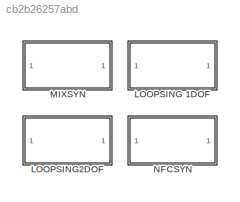
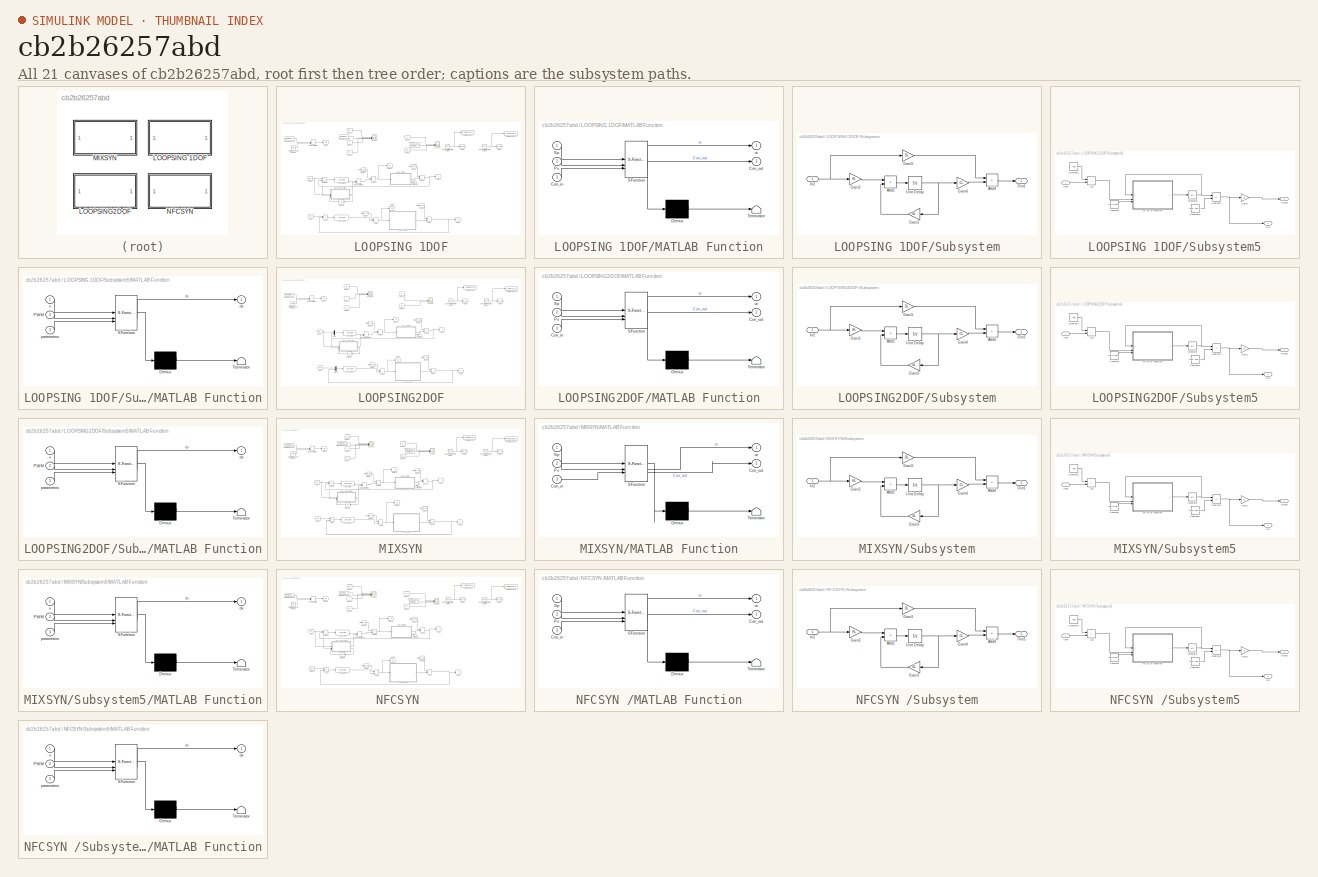
[diagram: thumbnail index - all 21 canvases of the model, root first then tree order]
MODEL slx_cb2b26257abd
KIND model
CONFIG AbsTol = auto
CONFIG EnableMultiTasking = off
CONFIG FixedStep = auto
CONFIG MaxStep = auto
CONFIG MinStep = auto
CONFIG RelTol = 1e-3
CONFIG SampleTimeConstraint = Unconstrained
CONFIG SolverName = ode23t
CONFIG StartTime = 0.0
CONFIG StopTime = 110
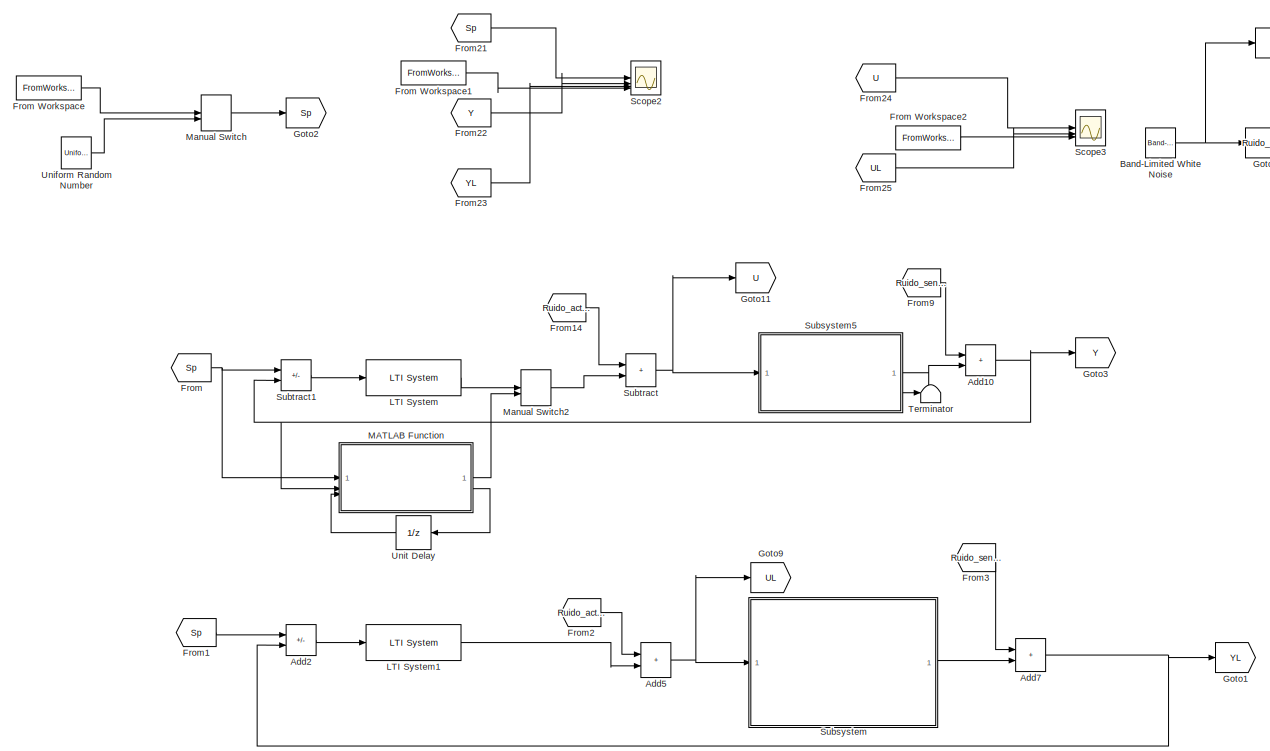
[diagram: LOOPSING 1DOF - part 1/2, most of the canvas]
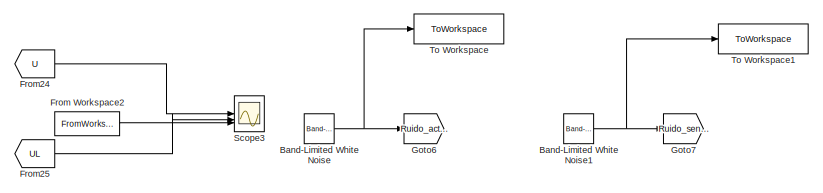
[diagram: LOOPSING 1DOF - part 2/2, top right region]
BLOCK [SubSystem] LOOPSING 1DOF
  Commented = on
BLOCK [Sum] LOOPSING 1DOF/Add10
  IconShape = rectangular
BLOCK [Sum] LOOPSING 1DOF/Add2
  IconShape = rectangular
  Inputs = +-
BLOCK [Sum] LOOPSING 1DOF/Add5
  IconShape = rectangular
BLOCK [Sum] LOOPSING 1DOF/Add7
  IconShape = rectangular
BLOCK [Reference] LOOPSING 1DOF/Band-Limited White Noise  REF=simulink/Sources/Band-Limited
White Noise
  SourceBlock = simulink/Sources/Band-Limited\nWhite Noise
  SourceType = Band-Limited White Noise.
BLOCK [Reference] LOOPSING 1DOF/Band-Limited White Noise1  REF=simulink/Sources/Band-Limited
White Noise
  SourceBlock = simulink/Sources/Band-Limited\nWhite Noise
  SourceType = Band-Limited White Noise.
BLOCK [From] LOOPSING 1DOF/From
  GotoTag = Sp
BLOCK [FromWorkspace] LOOPSING 1DOF/From Workspace
  VariableName = [t' SP]
BLOCK [FromWorkspace] LOOPSING 1DOF/From Workspace1
  VariableName = [t' theta]
BLOCK [FromWorkspace] LOOPSING 1DOF/From Workspace2
  VariableName = [t' pwm]
BLOCK [From] LOOPSING 1DOF/From1
  GotoTag = Sp
BLOCK [From] LOOPSING 1DOF/From14
  GotoTag = Ruido_actuador
BLOCK [From] LOOPSING 1DOF/From2
  GotoTag = Ruido_actuador
BLOCK [From] LOOPSING 1DOF/From21
  GotoTag = Sp
BLOCK [From] LOOPSING 1DOF/From22
  GotoTag = Y
BLOCK [From] LOOPSING 1DOF/From23
  GotoTag = YL
BLOCK [From] LOOPSING 1DOF/From24
  GotoTag = U
BLOCK [From] LOOPSING 1DOF/From25
  GotoTag = UL
BLOCK [From] LOOPSING 1DOF/From3
  GotoTag = Ruido_sensor
BLOCK [From] LOOPSING 1DOF/From9
  GotoTag = Ruido_sensor
BLOCK [Goto] LOOPSING 1DOF/Goto1
  GotoTag = YL
BLOCK [Goto] LOOPSING 1DOF/Goto11
  GotoTag = U
BLOCK [Goto] LOOPSING 1DOF/Goto2
  GotoTag = Sp
BLOCK [Goto] LOOPSING 1DOF/Goto3
  GotoTag = Y
BLOCK [Goto] LOOPSING 1DOF/Goto6
  GotoTag = Ruido_actuador
BLOCK [Goto] LOOPSING 1DOF/Goto7
  GotoTag = Ruido_sensor
BLOCK [Goto] LOOPSING 1DOF/Goto9
  GotoTag = UL
BLOCK [Reference] LOOPSING 1DOF/LTI System  REF=cstblocks/LTI System
  SourceBlock = cstblocks/LTI System
  SourceType = LTI Block
BLOCK [Reference] LOOPSING 1DOF/LTI System1  REF=cstblocks/LTI System
  SourceBlock = cstblocks/LTI System
  SourceType = LTI Block
BLOCK [SubSystem] LOOPSING 1DOF/MATLAB Function
  ErrorFcn = Stateflow.Translate.translate
  PermitHierarchicalResolution = ExplicitOnly
  SFBlockType = MATLAB Function
  TreatAsAtomicUnit = on
BLOCK [Demux] LOOPSING 1DOF/MATLAB Function/ Demux 
  Outputs = 1
BLOCK [S-Function] LOOPSING 1DOF/MATLAB Function/ SFunction 
  EnableBusSupport = on
  FunctionName = sf_sfun
  PortCounts = [3 3]
  SFcnIsStateOwnerBlock = off
  SFunctionDeploymentMode = off
  Tag = Stateflow S-Function 2
BLOCK [Terminator] LOOPSING 1DOF/MATLAB Function/ Terminator 
BLOCK [Inport] LOOPSING 1DOF/MATLAB Function/Con_in
  Port = 3
BLOCK [Outport] LOOPSING 1DOF/MATLAB Function/Con_out
  Port = 2
  VectorParamsAs1DForOutWhenUnconnected = off
BLOCK [Inport] LOOPSING 1DOF/MATLAB Function/Pv
  Port = 2
BLOCK [Inport] LOOPSING 1DOF/MATLAB Function/Sp
BLOCK [Outport] LOOPSING 1DOF/MATLAB Function/ut
  VectorParamsAs1DForOutWhenUnconnected = off
BLOCK [ManualSwitch] LOOPSING 1DOF/Manual Switch
BLOCK [ManualSwitch] LOOPSING 1DOF/Manual Switch2
  CurrentSetting = 0
BLOCK [Scope] LOOPSING 1DOF/Scope2
  Floating = off
  NumInputPorts = 4
  ScopeSpecificationString = Simulink.scopes.TimeScopeBlockCfg('CurrentConfiguration', extmgr.ConfigurationSet(extmgr.Configuration('Core','General UI',true,'FigureColor',[1 1 1]),extmgr.Configuration('Core','Source UI',true),extmgr.Configuration('Sources','WiredSimulink',true,'DataLoggingVariableName','ScopeData1'),extmgr.Configuration('Visuals','Time Domain',true,'SerializedDisplays',{struct('MinYLimReal','-1.73389','MaxYLi...<+2507ch>
BLOCK [Scope] LOOPSING 1DOF/Scope3
  Floating = off
  NumInputPorts = 3
  ScopeSpecificationString = Simulink.scopes.TimeScopeBlockCfg('CurrentConfiguration', extmgr.ConfigurationSet(extmgr.Configuration('Core','General UI',true,'FigureColor',[1 1 1]),extmgr.Configuration('Core','Source UI',true),extmgr.Configuration('Sources','WiredSimulink',true,'DataLoggingVariableName','ScopeData2'),extmgr.Configuration('Visuals','Time Domain',true,'SerializedDisplays',{struct('MinYLimReal','-122.1502','MaxYL...<+2506ch>
BLOCK [SubSystem] LOOPSING 1DOF/Subsystem
BLOCK [Sum] LOOPSING 1DOF/Subsystem/Add1
  IconShape = rectangular
BLOCK [Sum] LOOPSING 1DOF/Subsystem/Add4
  IconShape = rectangular
BLOCK [Gain] LOOPSING 1DOF/Subsystem/Gain2
  Gain = HL
  Multiplication = Matrix(K*u)
BLOCK [Gain] LOOPSING 1DOF/Subsystem/Gain3
  Gain = GL
  Multiplication = Matrix(K*u)
  NameLocation = top
BLOCK [Gain] LOOPSING 1DOF/Subsystem/Gain4
  Gain = CL
  Multiplication = Matrix(K*u)
BLOCK [Gain] LOOPSING 1DOF/Subsystem/Gain5
  Gain = DL
  Multiplication = Matrix(K*u)
BLOCK [Inport] LOOPSING 1DOF/Subsystem/In2
BLOCK [Outport] LOOPSING 1DOF/Subsystem/Out1
BLOCK [UnitDelay] LOOPSING 1DOF/Subsystem/Unit Delay
  HasFrameUpgradeWarning = on
  SampleTime = Tm
BLOCK [SubSystem] LOOPSING 1DOF/Subsystem5
BLOCK [Sum] LOOPSING 1DOF/Subsystem5/Add
  IconShape = rectangular
BLOCK [Constant] LOOPSING 1DOF/Subsystem5/Constant
  Value = [Ro,Lo,Kio, Kvo, Jmo, Jlo, Bmo, Blo, no, go, do, mo]
BLOCK [Constant] LOOPSING 1DOF/Subsystem5/Constant1
  Value = Vin0
BLOCK [Constant] LOOPSING 1DOF/Subsystem5/Constant2
  Value = [X10; X20;X30]
BLOCK [Outport] LOOPSING 1DOF/Subsystem5/Est
  Port = 2
BLOCK [Gain] LOOPSING 1DOF/Subsystem5/Gain1
  Gain = CL
  Multiplication = Matrix(K*u)
BLOCK [Inport] LOOPSING 1DOF/Subsystem5/Input
BLOCK [Integrator] LOOPSING 1DOF/Subsystem5/Integrator
  InitialCondition = [X10; X20;X30]
BLOCK [SubSystem] LOOPSING 1DOF/Subsystem5/MATLAB Function
  ErrorFcn = Stateflow.Translate.translate
  PermitHierarchicalResolution = ExplicitOnly
  SFBlockType = MATLAB Function
  TreatAsAtomicUnit = on
BLOCK [Demux] LOOPSING 1DOF/Subsystem5/MATLAB Function/ Demux 
  Outputs = 1
BLOCK [S-Function] LOOPSING 1DOF/Subsystem5/MATLAB Function/ SFunction 
  EnableBusSupport = on
  FunctionName = sf_sfun
  PortCounts = [3 2]
  SFcnIsStateOwnerBlock = off
  SFunctionDeploymentMode = off
  Tag = Stateflow S-Function 3
BLOCK [Terminator] LOOPSING 1DOF/Subsystem5/MATLAB Function/ Terminator 
BLOCK [Inport] LOOPSING 1DOF/Subsystem5/MATLAB Function/PWM
  Port = 2
BLOCK [Outport] LOOPSING 1DOF/Subsystem5/MATLAB Function/dx
BLOCK [Inport] LOOPSING 1DOF/Subsystem5/MATLAB Function/parametros
  Port = 3
BLOCK [Inport] LOOPSING 1DOF/Subsystem5/MATLAB Function/x
BLOCK [Outport] LOOPSING 1DOF/Subsystem5/Output
BLOCK [Sum] LOOPSING 1DOF/Subsystem5/Subtract1
  IconShape = rectangular
  Inputs = +-
BLOCK [Sum] LOOPSING 1DOF/Subtract
  IconShape = rectangular
BLOCK [Sum] LOOPSING 1DOF/Subtract1
  IconShape = rectangular
  Inputs = +-
BLOCK [Terminator] LOOPSING 1DOF/Terminator
BLOCK [ToWorkspace] LOOPSING 1DOF/To Workspace
  FixptAsFi = on
  MaxDataPoints = inf
  SampleTime = -1
  VariableName = Ruido_actuador2
BLOCK [ToWorkspace] LOOPSING 1DOF/To Workspace1
  FixptAsFi = on
  MaxDataPoints = inf
  SampleTime = -1
  VariableName = Ruido_sensor2
BLOCK [UniformRandomNumber] LOOPSING 1DOF/Uniform Random Number
  Maximum = 70*(pi/180)
  Minimum = -70*(pi/180)
  SampleTime = 10
BLOCK [UnitDelay] LOOPSING 1DOF/Unit Delay
  HasFrameUpgradeWarning = on
  InitialCondition = zeros(4,1)
  NameLocation = top
  SampleTime = Tm
BLOCK [SubSystem] LOOPSING2DOF
  Commented = on
BLOCK [Sum] LOOPSING2DOF/Add10
  IconShape = rectangular
BLOCK [Sum] LOOPSING2DOF/Add5
  IconShape = rectangular
BLOCK [Sum] LOOPSING2DOF/Add7
  IconShape = rectangular
BLOCK [Reference] LOOPSING2DOF/Band-Limited White Noise  REF=simulink/Sources/Band-Limited
White Noise
  SourceBlock = simulink/Sources/Band-Limited\nWhite Noise
  SourceType = Band-Limited White Noise.
BLOCK [Reference] LOOPSING2DOF/Band-Limited White Noise1  REF=simulink/Sources/Band-Limited
White Noise
  SourceBlock = simulink/Sources/Band-Limited\nWhite Noise
  SourceType = Band-Limited White Noise.
BLOCK [From] LOOPSING2DOF/From
  GotoTag = Sp
BLOCK [FromWorkspace] LOOPSING2DOF/From Workspace
  Commented = on
  VariableName = [t' SP]
BLOCK [From] LOOPSING2DOF/From1
  GotoTag = Sp
BLOCK [From] LOOPSING2DOF/From14
  GotoTag = Ruido_actuador
BLOCK [From] LOOPSING2DOF/From2
  GotoTag = Ruido_actuador
BLOCK [From] LOOPSING2DOF/From21
  GotoTag = Sp
BLOCK [From] LOOPSING2DOF/From22
  GotoTag = Y
BLOCK [From] LOOPSING2DOF/From23
  GotoTag = YL
BLOCK [From] LOOPSING2DOF/From24
  GotoTag = U
BLOCK [From] LOOPSING2DOF/From25
  GotoTag = UL
BLOCK [From] LOOPSING2DOF/From3
  GotoTag = Ruido_sensor
BLOCK [From] LOOPSING2DOF/From9
  GotoTag = Ruido_sensor
BLOCK [Goto] LOOPSING2DOF/Goto1
  GotoTag = YL
BLOCK [Goto] LOOPSING2DOF/Goto11
  GotoTag = U
BLOCK [Goto] LOOPSING2DOF/Goto2
  GotoTag = Sp
BLOCK [Goto] LOOPSING2DOF/Goto3
  GotoTag = Y
BLOCK [Goto] LOOPSING2DOF/Goto6
  GotoTag = Ruido_actuador
BLOCK [Goto] LOOPSING2DOF/Goto7
  GotoTag = Ruido_sensor
BLOCK [Goto] LOOPSING2DOF/Goto9
  GotoTag = UL
BLOCK [Reference] LOOPSING2DOF/LTI System  REF=cstblocks/LTI System
  SourceBlock = cstblocks/LTI System
  SourceType = LTI Block
BLOCK [Reference] LOOPSING2DOF/LTI System1  REF=cstblocks/LTI System
  SourceBlock = cstblocks/LTI System
  SourceType = LTI Block
BLOCK [SubSystem] LOOPSING2DOF/MATLAB Function
  ErrorFcn = Stateflow.Translate.translate
  PermitHierarchicalResolution = ExplicitOnly
  SFBlockType = MATLAB Function
  TreatAsAtomicUnit = on
BLOCK [Demux] LOOPSING2DOF/MATLAB Function/ Demux 
  Outputs = 1
BLOCK [S-Function] LOOPSING2DOF/MATLAB Function/ SFunction 
  EnableBusSupport = on
  FunctionName = sf_sfun
  PortCounts = [3 3]
  SFcnIsStateOwnerBlock = off
  SFunctionDeploymentMode = off
  Tag = Stateflow S-Function 4
BLOCK [Terminator] LOOPSING2DOF/MATLAB Function/ Terminator 
BLOCK [Inport] LOOPSING2DOF/MATLAB Function/Con_in
  Port = 3
BLOCK [Outport] LOOPSING2DOF/MATLAB Function/Con_out
  Port = 2
  VectorParamsAs1DForOutWhenUnconnected = off
BLOCK [Inport] LOOPSING2DOF/MATLAB Function/Pv
  Port = 2
BLOCK [Inport] LOOPSING2DOF/MATLAB Function/Sp
BLOCK [Outport] LOOPSING2DOF/MATLAB Function/ut
  VectorParamsAs1DForOutWhenUnconnected = off
BLOCK [ManualSwitch] LOOPSING2DOF/Manual Switch
  CurrentSetting = 0
BLOCK [ManualSwitch] LOOPSING2DOF/Manual Switch2
  CurrentSetting = 0
BLOCK [Mux] LOOPSING2DOF/Mux
  DisplayOption = bar
  Inputs = 2
BLOCK [Mux] LOOPSING2DOF/Mux1
  DisplayOption = bar
  Inputs = 2
BLOCK [Scope] LOOPSING2DOF/Scope2
  Floating = off
  NumInputPorts = 3
  ScopeSpecificationString = Simulink.scopes.TimeScopeBlockCfg('CurrentConfiguration', extmgr.ConfigurationSet(extmgr.Configuration('Core','General UI',true,'FigureColor',[1 1 1]),extmgr.Configuration('Core','Source UI',true),extmgr.Configuration('Sources','WiredSimulink',true,'DataLoggingVariableName','ScopeData3'),extmgr.Configuration('Visuals','Time Domain',true,'SerializedDisplays',{struct('MinYLimReal','-1.46938','MaxYLi...<+2491ch>
BLOCK [Scope] LOOPSING2DOF/Scope3
  Floating = off
  NumInputPorts = 2
  ScopeSpecificationString = Simulink.scopes.TimeScopeBlockCfg('CurrentConfiguration', extmgr.ConfigurationSet(extmgr.Configuration('Core','General UI',true,'FigureColor',[1 1 1]),extmgr.Configuration('Core','Source UI',true),extmgr.Configuration('Sources','WiredSimulink',true,'DataLoggingVariableName','ScopeData4'),extmgr.Configuration('Visuals','Time Domain',true,'SerializedDisplays',{struct('MinYLimReal','-59.14386','MaxYL...<+2488ch>
BLOCK [SubSystem] LOOPSING2DOF/Subsystem
BLOCK [Sum] LOOPSING2DOF/Subsystem/Add1
  IconShape = rectangular
BLOCK [Sum] LOOPSING2DOF/Subsystem/Add4
  IconShape = rectangular
BLOCK [Gain] LOOPSING2DOF/Subsystem/Gain2
  Gain = HL
  Multiplication = Matrix(K*u)
BLOCK [Gain] LOOPSING2DOF/Subsystem/Gain3
  Gain = GL
  Multiplication = Matrix(K*u)
  NameLocation = top
BLOCK [Gain] LOOPSING2DOF/Subsystem/Gain4
  Gain = CL
  Multiplication = Matrix(K*u)
BLOCK [Gain] LOOPSING2DOF/Subsystem/Gain5
  Gain = DL
  Multiplication = Matrix(K*u)
BLOCK [Inport] LOOPSING2DOF/Subsystem/In2
BLOCK [Outport] LOOPSING2DOF/Subsystem/Out1
BLOCK [UnitDelay] LOOPSING2DOF/Subsystem/Unit Delay
  HasFrameUpgradeWarning = on
  SampleTime = Tm
BLOCK [SubSystem] LOOPSING2DOF/Subsystem5
BLOCK [Sum] LOOPSING2DOF/Subsystem5/Add
  IconShape = rectangular
BLOCK [Constant] LOOPSING2DOF/Subsystem5/Constant
  Value = [Ro,Lo,Kio, Kvo, Jmo, Jlo, Bmo, Blo, no, go, do, mo]
BLOCK [Constant] LOOPSING2DOF/Subsystem5/Constant1
  Value = Vin0
BLOCK [Constant] LOOPSING2DOF/Subsystem5/Constant2
  Value = [X10; X20;X30]
BLOCK [Outport] LOOPSING2DOF/Subsystem5/Est
  Port = 2
BLOCK [Gain] LOOPSING2DOF/Subsystem5/Gain1
  Gain = CL
  Multiplication = Matrix(K*u)
BLOCK [Inport] LOOPSING2DOF/Subsystem5/Input
BLOCK [Integrator] LOOPSING2DOF/Subsystem5/Integrator
  InitialCondition = [X10; X20;X30]
BLOCK [SubSystem] LOOPSING2DOF/Subsystem5/MATLAB Function
  ErrorFcn = Stateflow.Translate.translate
  PermitHierarchicalResolution = ExplicitOnly
  SFBlockType = MATLAB Function
  TreatAsAtomicUnit = on
BLOCK [Demux] LOOPSING2DOF/Subsystem5/MATLAB Function/ Demux 
  Outputs = 1
BLOCK [S-Function] LOOPSING2DOF/Subsystem5/MATLAB Function/ SFunction 
  EnableBusSupport = on
  FunctionName = sf_sfun
  PortCounts = [3 2]
  SFcnIsStateOwnerBlock = off
  SFunctionDeploymentMode = off
  Tag = Stateflow S-Function 5
BLOCK [Terminator] LOOPSING2DOF/Subsystem5/MATLAB Function/ Terminator 
BLOCK [Inport] LOOPSING2DOF/Subsystem5/MATLAB Function/PWM
  Port = 2
BLOCK [Outport] LOOPSING2DOF/Subsystem5/MATLAB Function/dx
BLOCK [Inport] LOOPSING2DOF/Subsystem5/MATLAB Function/parametros
  Port = 3
BLOCK [Inport] LOOPSING2DOF/Subsystem5/MATLAB Function/x
BLOCK [Outport] LOOPSING2DOF/Subsystem5/Output
BLOCK [Sum] LOOPSING2DOF/Subsystem5/Subtract1
  IconShape = rectangular
  Inputs = +-
BLOCK [Sum] LOOPSING2DOF/Subtract
  IconShape = rectangular
BLOCK [Terminator] LOOPSING2DOF/Terminator
BLOCK [ToWorkspace] LOOPSING2DOF/To Workspace
  FixptAsFi = on
  MaxDataPoints = inf
  SampleTime = -1
  VariableName = Ruido_actuador2
BLOCK [ToWorkspace] LOOPSING2DOF/To Workspace1
  FixptAsFi = on
  MaxDataPoints = inf
  SampleTime = -1
  VariableName = Ruido_sensor2
BLOCK [UniformRandomNumber] LOOPSING2DOF/Uniform Random Number
  Maximum = 70*(pi/180)
  Minimum = -70*(pi/180)
  SampleTime = 10
BLOCK [UnitDelay] LOOPSING2DOF/Unit Delay
  HasFrameUpgradeWarning = on
  InitialCondition = zeros(5,1)
  NameLocation = top
  SampleTime = Tm
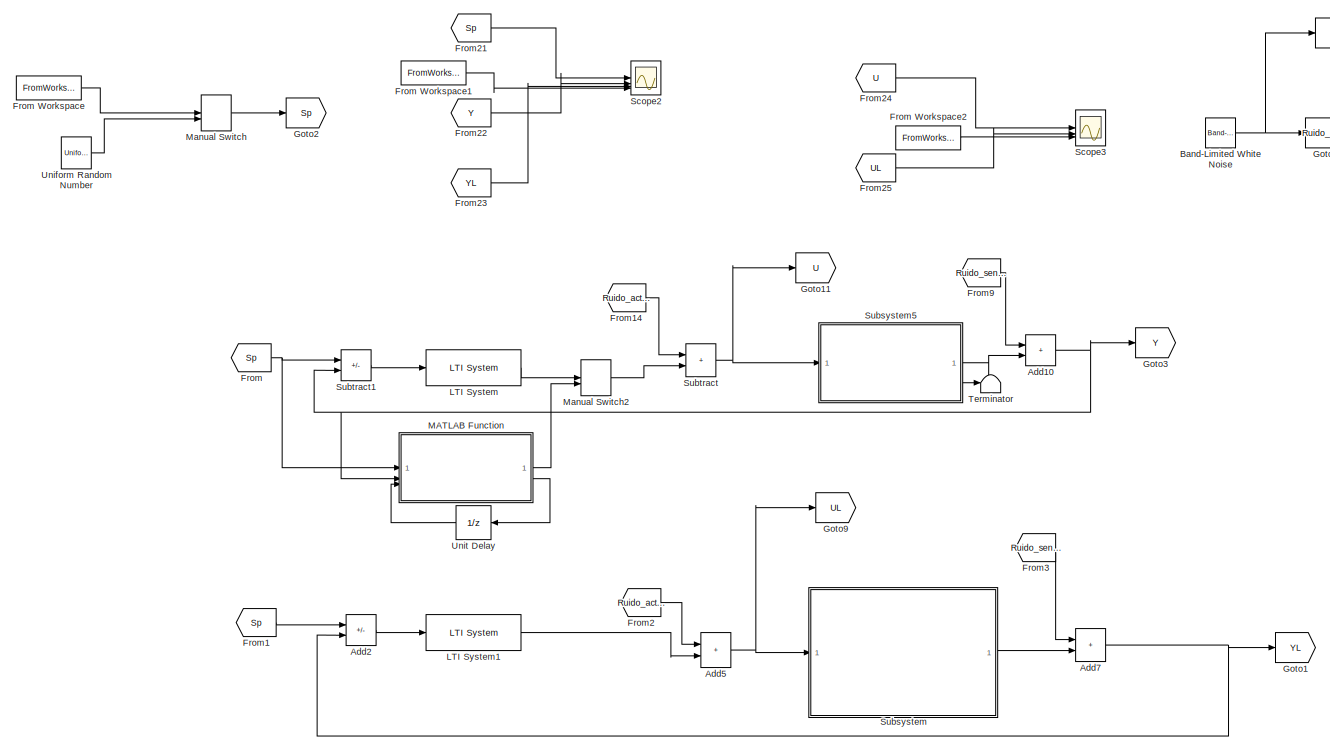
[diagram: MIXSYN - part 1/2, most of the canvas]
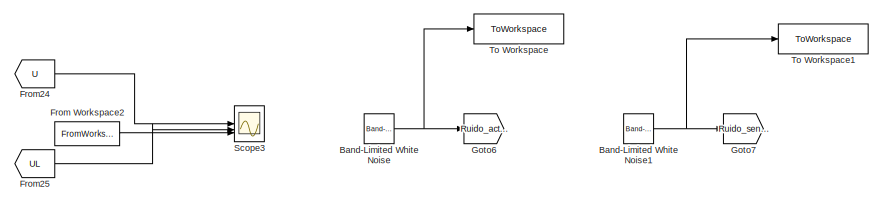
[diagram: MIXSYN - part 2/2, top right region]
BLOCK [SubSystem] MIXSYN
BLOCK [Sum] MIXSYN/Add10
  IconShape = rectangular
BLOCK [Sum] MIXSYN/Add2
  IconShape = rectangular
  Inputs = +-
BLOCK [Sum] MIXSYN/Add5
  IconShape = rectangular
BLOCK [Sum] MIXSYN/Add7
  IconShape = rectangular
BLOCK [Reference] MIXSYN/Band-Limited White Noise  REF=simulink/Sources/Band-Limited
White Noise
  SourceBlock = simulink/Sources/Band-Limited\nWhite Noise
  SourceType = Band-Limited White Noise.
BLOCK [Reference] MIXSYN/Band-Limited White Noise1  REF=simulink/Sources/Band-Limited
White Noise
  SourceBlock = simulink/Sources/Band-Limited\nWhite Noise
  SourceType = Band-Limited White Noise.
BLOCK [From] MIXSYN/From
  GotoTag = Sp
BLOCK [FromWorkspace] MIXSYN/From Workspace
  VariableName = [t' SP]
BLOCK [FromWorkspace] MIXSYN/From Workspace1
  VariableName = [t' theta]
BLOCK [FromWorkspace] MIXSYN/From Workspace2
  VariableName = [t' pwm]
BLOCK [From] MIXSYN/From1
  GotoTag = Sp
BLOCK [From] MIXSYN/From14
  GotoTag = Ruido_actuador
BLOCK [From] MIXSYN/From2
  GotoTag = Ruido_actuador
BLOCK [From] MIXSYN/From21
  GotoTag = Sp
BLOCK [From] MIXSYN/From22
  GotoTag = Y
BLOCK [From] MIXSYN/From23
  GotoTag = YL
BLOCK [From] MIXSYN/From24
  GotoTag = U
BLOCK [From] MIXSYN/From25
  GotoTag = UL
BLOCK [From] MIXSYN/From3
  GotoTag = Ruido_sensor
BLOCK [From] MIXSYN/From9
  GotoTag = Ruido_sensor
BLOCK [Goto] MIXSYN/Goto1
  GotoTag = YL
BLOCK [Goto] MIXSYN/Goto11
  GotoTag = U
BLOCK [Goto] MIXSYN/Goto2
  GotoTag = Sp
BLOCK [Goto] MIXSYN/Goto3
  GotoTag = Y
BLOCK [Goto] MIXSYN/Goto6
  GotoTag = Ruido_actuador
BLOCK [Goto] MIXSYN/Goto7
  GotoTag = Ruido_sensor
BLOCK [Goto] MIXSYN/Goto9
  GotoTag = UL
BLOCK [Reference] MIXSYN/LTI System  REF=cstblocks/LTI System
  SourceBlock = cstblocks/LTI System
  SourceType = LTI Block
BLOCK [Reference] MIXSYN/LTI System1  REF=cstblocks/LTI System
  SourceBlock = cstblocks/LTI System
  SourceType = LTI Block
BLOCK [SubSystem] MIXSYN/MATLAB Function
  ErrorFcn = Stateflow.Translate.translate
  PermitHierarchicalResolution = ExplicitOnly
  SFBlockType = MATLAB Function
  TreatAsAtomicUnit = on
BLOCK [Demux] MIXSYN/MATLAB Function/ Demux 
  Outputs = 1
BLOCK [S-Function] MIXSYN/MATLAB Function/ SFunction 
  EnableBusSupport = on
  FunctionName = sf_sfun
  PortCounts = [3 3]
  SFcnIsStateOwnerBlock = off
  SFunctionDeploymentMode = off
  Tag = Stateflow S-Function 1
BLOCK [Terminator] MIXSYN/MATLAB Function/ Terminator 
BLOCK [Inport] MIXSYN/MATLAB Function/Con_in
  Port = 3
BLOCK [Outport] MIXSYN/MATLAB Function/Con_out
  Port = 2
  VectorParamsAs1DForOutWhenUnconnected = off
BLOCK [Inport] MIXSYN/MATLAB Function/Pv
  Port = 2
BLOCK [Inport] MIXSYN/MATLAB Function/Sp
BLOCK [Outport] MIXSYN/MATLAB Function/ut
  VectorParamsAs1DForOutWhenUnconnected = off
BLOCK [ManualSwitch] MIXSYN/Manual Switch
BLOCK [ManualSwitch] MIXSYN/Manual Switch2
  CurrentSetting = 0
BLOCK [Scope] MIXSYN/Scope2
  Floating = off
  NumInputPorts = 4
  ScopeSpecificationString = Simulink.scopes.TimeScopeBlockCfg('CurrentConfiguration', extmgr.ConfigurationSet(extmgr.Configuration('Core','General UI',true,'FigureColor',[1 1 1]),extmgr.Configuration('Core','Source UI',true),extmgr.Configuration('Sources','WiredSimulink',true,'DataLoggingVariableName','ScopeData5'),extmgr.Configuration('Visuals','Time Domain',true,'SerializedDisplays',{struct('MinYLimReal','-1.46033','MaxYLi...<+2507ch>
BLOCK [Scope] MIXSYN/Scope3
  Floating = off
  NumInputPorts = 3
  ScopeSpecificationString = Simulink.scopes.TimeScopeBlockCfg('CurrentConfiguration', extmgr.ConfigurationSet(extmgr.Configuration('Core','General UI',true,'FigureColor',[1 1 1]),extmgr.Configuration('Core','Source UI',true),extmgr.Configuration('Sources','WiredSimulink',true,'DataLoggingVariableName','ScopeData6'),extmgr.Configuration('Visuals','Time Domain',true,'SerializedDisplays',{struct('MinYLimReal','-83.34375','MaxYL...<+2504ch>
BLOCK [SubSystem] MIXSYN/Subsystem
BLOCK [Sum] MIXSYN/Subsystem/Add1
  IconShape = rectangular
BLOCK [Sum] MIXSYN/Subsystem/Add4
  IconShape = rectangular
BLOCK [Gain] MIXSYN/Subsystem/Gain2
  Gain = HL
  Multiplication = Matrix(K*u)
BLOCK [Gain] MIXSYN/Subsystem/Gain3
  Gain = GL
  Multiplication = Matrix(K*u)
  NameLocation = top
BLOCK [Gain] MIXSYN/Subsystem/Gain4
  Gain = CL
  Multiplication = Matrix(K*u)
BLOCK [Gain] MIXSYN/Subsystem/Gain5
  Gain = DL
  Multiplication = Matrix(K*u)
BLOCK [Inport] MIXSYN/Subsystem/In2
BLOCK [Outport] MIXSYN/Subsystem/Out1
BLOCK [UnitDelay] MIXSYN/Subsystem/Unit Delay
  HasFrameUpgradeWarning = on
  SampleTime = Tm
BLOCK [SubSystem] MIXSYN/Subsystem5
BLOCK [Sum] MIXSYN/Subsystem5/Add
  IconShape = rectangular
BLOCK [Constant] MIXSYN/Subsystem5/Constant
  Value = [Ro,Lo,Kio, Kvo, Jmo, Jlo, Bmo, Blo, no, go, do, mo]
BLOCK [Constant] MIXSYN/Subsystem5/Constant1
  Value = Vin0
BLOCK [Constant] MIXSYN/Subsystem5/Constant2
  Value = [X10; X20;X30]
BLOCK [Outport] MIXSYN/Subsystem5/Est
  Port = 2
BLOCK [Gain] MIXSYN/Subsystem5/Gain1
  Gain = CL
  Multiplication = Matrix(K*u)
BLOCK [Inport] MIXSYN/Subsystem5/Input
BLOCK [Integrator] MIXSYN/Subsystem5/Integrator
  InitialCondition = [X10; X20;X30]
BLOCK [SubSystem] MIXSYN/Subsystem5/MATLAB Function
  ErrorFcn = Stateflow.Translate.translate
  PermitHierarchicalResolution = ExplicitOnly
  SFBlockType = MATLAB Function
  TreatAsAtomicUnit = on
BLOCK [Demux] MIXSYN/Subsystem5/MATLAB Function/ Demux 
  Outputs = 1
BLOCK [S-Function] MIXSYN/Subsystem5/MATLAB Function/ SFunction 
  EnableBusSupport = on
  FunctionName = sf_sfun
  PortCounts = [3 2]
  SFcnIsStateOwnerBlock = off
  SFunctionDeploymentMode = off
  Tag = Stateflow S-Function 10
BLOCK [Terminator] MIXSYN/Subsystem5/MATLAB Function/ Terminator 
BLOCK [Inport] MIXSYN/Subsystem5/MATLAB Function/PWM
  Port = 2
BLOCK [Outport] MIXSYN/Subsystem5/MATLAB Function/dx
BLOCK [Inport] MIXSYN/Subsystem5/MATLAB Function/parametros
  Port = 3
BLOCK [Inport] MIXSYN/Subsystem5/MATLAB Function/x
BLOCK [Outport] MIXSYN/Subsystem5/Output
BLOCK [Sum] MIXSYN/Subsystem5/Subtract1
  IconShape = rectangular
  Inputs = +-
BLOCK [Sum] MIXSYN/Subtract
  IconShape = rectangular
BLOCK [Sum] MIXSYN/Subtract1
  IconShape = rectangular
  Inputs = +-
BLOCK [Terminator] MIXSYN/Terminator
BLOCK [ToWorkspace] MIXSYN/To Workspace
  FixptAsFi = on
  MaxDataPoints = inf
  SampleTime = -1
  VariableName = Ruido_actuador2
BLOCK [ToWorkspace] MIXSYN/To Workspace1
  FixptAsFi = on
  MaxDataPoints = inf
  SampleTime = -1
  VariableName = Ruido_sensor2
BLOCK [UniformRandomNumber] MIXSYN/Uniform Random Number
  Maximum = 70*(pi/180)
  Minimum = -70*(pi/180)
  SampleTime = 10
BLOCK [UnitDelay] MIXSYN/Unit Delay
  HasFrameUpgradeWarning = on
  InitialCondition = zeros(5,1)
  NameLocation = top
  SampleTime = Tm
BLOCK [SubSystem] NFCSYN 
  Commented = on
BLOCK [Sum] NFCSYN /Add10
  IconShape = rectangular
BLOCK [Sum] NFCSYN /Add2
  IconShape = rectangular
  Inputs = +-
BLOCK [Sum] NFCSYN /Add5
  IconShape = rectangular
BLOCK [Sum] NFCSYN /Add7
  IconShape = rectangular
BLOCK [Reference] NFCSYN /Band-Limited White Noise  REF=simulink/Sources/Band-Limited
White Noise
  SourceBlock = simulink/Sources/Band-Limited\nWhite Noise
  SourceType = Band-Limited White Noise.
BLOCK [Reference] NFCSYN /Band-Limited White Noise1  REF=simulink/Sources/Band-Limited
White Noise
  SourceBlock = simulink/Sources/Band-Limited\nWhite Noise
  SourceType = Band-Limited White Noise.
BLOCK [From] NFCSYN /From
  GotoTag = Sp
BLOCK [FromWorkspace] NFCSYN /From Workspace
  VariableName = [t' SP]
BLOCK [FromWorkspace] NFCSYN /From Workspace1
  VariableName = [t' theta]
BLOCK [FromWorkspace] NFCSYN /From Workspace2
  VariableName = [t' pwm]
BLOCK [From] NFCSYN /From1
  GotoTag = Sp
BLOCK [From] NFCSYN /From14
  GotoTag = Ruido_actuador
BLOCK [From] NFCSYN /From2
  GotoTag = Ruido_actuador
BLOCK [From] NFCSYN /From21
  GotoTag = Sp
BLOCK [From] NFCSYN /From22
  GotoTag = Y
BLOCK [From] NFCSYN /From23
  GotoTag = YL
BLOCK [From] NFCSYN /From24
  GotoTag = U
BLOCK [From] NFCSYN /From25
  GotoTag = UL
BLOCK [From] NFCSYN /From3
  GotoTag = Ruido_sensor
BLOCK [From] NFCSYN /From9
  GotoTag = Ruido_sensor
BLOCK [Goto] NFCSYN /Goto1
  GotoTag = YL
BLOCK [Goto] NFCSYN /Goto11
  GotoTag = U
BLOCK [Goto] NFCSYN /Goto2
  GotoTag = Sp
BLOCK [Goto] NFCSYN /Goto3
  GotoTag = Y
BLOCK [Goto] NFCSYN /Goto6
  GotoTag = Ruido_actuador
BLOCK [Goto] NFCSYN /Goto7
  GotoTag = Ruido_sensor
BLOCK [Goto] NFCSYN /Goto9
  GotoTag = UL
BLOCK [Reference] NFCSYN /LTI System  REF=cstblocks/LTI System
  SourceBlock = cstblocks/LTI System
  SourceType = LTI Block
BLOCK [Reference] NFCSYN /LTI System1  REF=cstblocks/LTI System
  SourceBlock = cstblocks/LTI System
  SourceType = LTI Block
BLOCK [SubSystem] NFCSYN /MATLAB Function
  ErrorFcn = Stateflow.Translate.translate
  PermitHierarchicalResolution = ExplicitOnly
  SFBlockType = MATLAB Function
  TreatAsAtomicUnit = on
BLOCK [Demux] NFCSYN /MATLAB Function/ Demux 
  Outputs = 1
BLOCK [S-Function] NFCSYN /MATLAB Function/ SFunction 
  EnableBusSupport = on
  FunctionName = sf_sfun
  PortCounts = [3 3]
  SFcnIsStateOwnerBlock = off
  SFunctionDeploymentMode = off
  Tag = Stateflow S-Function 6
BLOCK [Terminator] NFCSYN /MATLAB Function/ Terminator 
BLOCK [Inport] NFCSYN /MATLAB Function/Con_in
  Port = 3
BLOCK [Outport] NFCSYN /MATLAB Function/Con_out
  Port = 2
  VectorParamsAs1DForOutWhenUnconnected = off
BLOCK [Inport] NFCSYN /MATLAB Function/Pv
  Port = 2
BLOCK [Inport] NFCSYN /MATLAB Function/Sp
BLOCK [Outport] NFCSYN /MATLAB Function/ut
  VectorParamsAs1DForOutWhenUnconnected = off
BLOCK [ManualSwitch] NFCSYN /Manual Switch
BLOCK [ManualSwitch] NFCSYN /Manual Switch2
  CurrentSetting = 0
BLOCK [Scope] NFCSYN /Scope2
  Floating = off
  NumInputPorts = 4
  ScopeSpecificationString = Simulink.scopes.TimeScopeBlockCfg('CurrentConfiguration', extmgr.ConfigurationSet(extmgr.Configuration('Core','General UI',true,'FigureColor',[1 1 1]),extmgr.Configuration('Core','Source UI',true),extmgr.Configuration('Sources','WiredSimulink',true,'DataLoggingVariableName','ScopeData5'),extmgr.Configuration('Visuals','Time Domain',true,'SerializedDisplays',{struct('MinYLimReal','-1.68306','MaxYLi...<+2507ch>
BLOCK [Scope] NFCSYN /Scope3
  Floating = off
  NumInputPorts = 3
  ScopeSpecificationString = Simulink.scopes.TimeScopeBlockCfg('CurrentConfiguration', extmgr.ConfigurationSet(extmgr.Configuration('Core','General UI',true,'FigureColor',[1 1 1]),extmgr.Configuration('Core','Source UI',true),extmgr.Configuration('Sources','WiredSimulink',true,'DataLoggingVariableName','ScopeData6'),extmgr.Configuration('Visuals','Time Domain',true,'SerializedDisplays',{struct('MinYLimReal','-86.6975','MaxYLi...<+2498ch>
BLOCK [SubSystem] NFCSYN /Subsystem
BLOCK [Sum] NFCSYN /Subsystem/Add1
  IconShape = rectangular
BLOCK [Sum] NFCSYN /Subsystem/Add4
  IconShape = rectangular
BLOCK [Gain] NFCSYN /Subsystem/Gain2
  Gain = HL
  Multiplication = Matrix(K*u)
BLOCK [Gain] NFCSYN /Subsystem/Gain3
  Gain = GL
  Multiplication = Matrix(K*u)
  NameLocation = top
BLOCK [Gain] NFCSYN /Subsystem/Gain4
  Gain = CL
  Multiplication = Matrix(K*u)
BLOCK [Gain] NFCSYN /Subsystem/Gain5
  Gain = DL
  Multiplication = Matrix(K*u)
BLOCK [Inport] NFCSYN /Subsystem/In2
BLOCK [Outport] NFCSYN /Subsystem/Out1
BLOCK [UnitDelay] NFCSYN /Subsystem/Unit Delay
  HasFrameUpgradeWarning = on
  SampleTime = Tm
BLOCK [SubSystem] NFCSYN /Subsystem5
BLOCK [Sum] NFCSYN /Subsystem5/Add
  IconShape = rectangular
BLOCK [Constant] NFCSYN /Subsystem5/Constant
  Value = [Ro,Lo,Kio, Kvo, Jmo, Jlo, Bmo, Blo, no, go, do, mo]
BLOCK [Constant] NFCSYN /Subsystem5/Constant1
  Value = Vin0
BLOCK [Constant] NFCSYN /Subsystem5/Constant2
  Value = [X10; X20;X30]
BLOCK [Outport] NFCSYN /Subsystem5/Est
  Port = 2
BLOCK [Gain] NFCSYN /Subsystem5/Gain1
  Gain = CL
  Multiplication = Matrix(K*u)
BLOCK [Inport] NFCSYN /Subsystem5/Input
BLOCK [Integrator] NFCSYN /Subsystem5/Integrator
  InitialCondition = [X10; X20;X30]
BLOCK [SubSystem] NFCSYN /Subsystem5/MATLAB Function
  ErrorFcn = Stateflow.Translate.translate
  PermitHierarchicalResolution = ExplicitOnly
  SFBlockType = MATLAB Function
  TreatAsAtomicUnit = on
BLOCK [Demux] NFCSYN /Subsystem5/MATLAB Function/ Demux 
  Outputs = 1
BLOCK [S-Function] NFCSYN /Subsystem5/MATLAB Function/ SFunction 
  EnableBusSupport = on
  FunctionName = sf_sfun
  PortCounts = [3 2]
  SFcnIsStateOwnerBlock = off
  SFunctionDeploymentMode = off
  Tag = Stateflow S-Function 7
BLOCK [Terminator] NFCSYN /Subsystem5/MATLAB Function/ Terminator 
BLOCK [Inport] NFCSYN /Subsystem5/MATLAB Function/PWM
  Port = 2
BLOCK [Outport] NFCSYN /Subsystem5/MATLAB Function/dx
BLOCK [Inport] NFCSYN /Subsystem5/MATLAB Function/parametros
  Port = 3
BLOCK [Inport] NFCSYN /Subsystem5/MATLAB Function/x
BLOCK [Outport] NFCSYN /Subsystem5/Output
BLOCK [Sum] NFCSYN /Subsystem5/Subtract1
  IconShape = rectangular
  Inputs = +-
BLOCK [Sum] NFCSYN /Subtract
  IconShape = rectangular
BLOCK [Sum] NFCSYN /Subtract1
  IconShape = rectangular
  Inputs = +-
BLOCK [Terminator] NFCSYN /Terminator
BLOCK [ToWorkspace] NFCSYN /To Workspace
  FixptAsFi = on
  MaxDataPoints = inf
  SampleTime = -1
  VariableName = Ruido_actuador2
BLOCK [ToWorkspace] NFCSYN /To Workspace1
  FixptAsFi = on
  MaxDataPoints = inf
  SampleTime = -1
  VariableName = Ruido_sensor2
BLOCK [UniformRandomNumber] NFCSYN /Uniform Random Number
  Maximum = 70*(pi/180)
  Minimum = -70*(pi/180)
  SampleTime = 10
BLOCK [UnitDelay] NFCSYN /Unit Delay
  HasFrameUpgradeWarning = on
  InitialCondition = zeros(4,1)
  NameLocation = top
  SampleTime = Tm
NET LOOPSING 1DOF/Add10:1 -> LOOPSING 1DOF/Goto3:1, LOOPSING 1DOF/MATLAB Function:2, LOOPSING 1DOF/Subtract1:2
LINE LOOPSING 1DOF/Add2:1 -> LOOPSING 1DOF/LTI System1:1
NET LOOPSING 1DOF/Add5:1 -> LOOPSING 1DOF/Goto9:1, LOOPSING 1DOF/Subsystem:1
NET LOOPSING 1DOF/Add7:1 -> LOOPSING 1DOF/Add2:2, LOOPSING 1DOF/Goto1:1
NET LOOPSING 1DOF/Band-Limited White Noise1:1 -> LOOPSING 1DOF/Goto7:1, LOOPSING 1DOF/To Workspace1:1
NET LOOPSING 1DOF/Band-Limited White Noise:1 -> LOOPSING 1DOF/Goto6:1, LOOPSING 1DOF/To Workspace:1
LINE LOOPSING 1DOF/From Workspace1:1 -> LOOPSING 1DOF/Scope2:4
LINE LOOPSING 1DOF/From Workspace2:1 -> LOOPSING 1DOF/Scope3:3
LINE LOOPSING 1DOF/From Workspace:1 -> LOOPSING 1DOF/Manual Switch:1
LINE LOOPSING 1DOF/From14:1 -> LOOPSING 1DOF/Subtract:1
LINE LOOPSING 1DOF/From1:1 -> LOOPSING 1DOF/Add2:1
LINE LOOPSING 1DOF/From21:1 -> LOOPSING 1DOF/Scope2:1
LINE LOOPSING 1DOF/From22:1 -> LOOPSING 1DOF/Scope2:2
LINE LOOPSING 1DOF/From23:1 -> LOOPSING 1DOF/Scope2:3
LINE LOOPSING 1DOF/From24:1 -> LOOPSING 1DOF/Scope3:1
LINE LOOPSING 1DOF/From25:1 -> LOOPSING 1DOF/Scope3:2
LINE LOOPSING 1DOF/From2:1 -> LOOPSING 1DOF/Add5:1
LINE LOOPSING 1DOF/From3:1 -> LOOPSING 1DOF/Add7:1
LINE LOOPSING 1DOF/From9:1 -> LOOPSING 1DOF/Add10:1
NET LOOPSING 1DOF/From:1 -> LOOPSING 1DOF/MATLAB Function:1, LOOPSING 1DOF/Subtract1:1
LINE LOOPSING 1DOF/LTI System1:1 -> LOOPSING 1DOF/Add5:2
LINE LOOPSING 1DOF/LTI System:1 -> LOOPSING 1DOF/Manual Switch2:1
LINE LOOPSING 1DOF/MATLAB Function:1 -> LOOPSING 1DOF/Manual Switch2:2
LINE LOOPSING 1DOF/MATLAB Function:2 -> LOOPSING 1DOF/Unit Delay:1
LINE LOOPSING 1DOF/Manual Switch2:1 -> LOOPSING 1DOF/Subtract:2
LINE LOOPSING 1DOF/Manual Switch:1 -> LOOPSING 1DOF/Goto2:1
LINE LOOPSING 1DOF/Subsystem/Add1:1 -> LOOPSING 1DOF/Subsystem/Unit Delay:1
LINE LOOPSING 1DOF/Subsystem/Add4:1 -> LOOPSING 1DOF/Subsystem/Out1:1
LINE LOOPSING 1DOF/Subsystem/Gain2:1 -> LOOPSING 1DOF/Subsystem/Add1:1
LINE LOOPSING 1DOF/Subsystem/Gain3:1 -> LOOPSING 1DOF/Subsystem/Add1:2
LINE LOOPSING 1DOF/Subsystem/Gain4:1 -> LOOPSING 1DOF/Subsystem/Add4:2
LINE LOOPSING 1DOF/Subsystem/Gain5:1 -> LOOPSING 1DOF/Subsystem/Add4:1
NET LOOPSING 1DOF/Subsystem/In2:1 -> LOOPSING 1DOF/Subsystem/Gain2:1, LOOPSING 1DOF/Subsystem/Gain5:1
NET LOOPSING 1DOF/Subsystem/Unit Delay:1 -> LOOPSING 1DOF/Subsystem/Gain3:1, LOOPSING 1DOF/Subsystem/Gain4:1
LINE LOOPSING 1DOF/Subsystem5/Add:1 -> LOOPSING 1DOF/Subsystem5/MATLAB Function:2
LINE LOOPSING 1DOF/Subsystem5/Constant1:1 -> LOOPSING 1DOF/Subsystem5/Add:1
LINE LOOPSING 1DOF/Subsystem5/Constant2:1 -> LOOPSING 1DOF/Subsystem5/Subtract1:2
LINE LOOPSING 1DOF/Subsystem5/Constant:1 -> LOOPSING 1DOF/Subsystem5/MATLAB Function:3
LINE LOOPSING 1DOF/Subsystem5/Gain1:1 -> LOOPSING 1DOF/Subsystem5/Output:1
LINE LOOPSING 1DOF/Subsystem5/Input:1 -> LOOPSING 1DOF/Subsystem5/Add:2
NET LOOPSING 1DOF/Subsystem5/Integrator:1 -> LOOPSING 1DOF/Subsystem5/MATLAB Function:1, LOOPSING 1DOF/Subsystem5/Subtract1:1
LINE LOOPSING 1DOF/Subsystem5/MATLAB Function:1 -> LOOPSING 1DOF/Subsystem5/Integrator:1
NET LOOPSING 1DOF/Subsystem5/Subtract1:1 -> LOOPSING 1DOF/Subsystem5/Est:1, LOOPSING 1DOF/Subsystem5/Gain1:1
LINE LOOPSING 1DOF/Subsystem5:1 -> LOOPSING 1DOF/Add10:2
LINE LOOPSING 1DOF/Subsystem5:2 -> LOOPSING 1DOF/Terminator:1
LINE LOOPSING 1DOF/Subsystem:1 -> LOOPSING 1DOF/Add7:2
LINE LOOPSING 1DOF/Subtract1:1 -> LOOPSING 1DOF/LTI System:1
NET LOOPSING 1DOF/Subtract:1 -> LOOPSING 1DOF/Goto11:1, LOOPSING 1DOF/Subsystem5:1
LINE LOOPSING 1DOF/Uniform Random Number:1 -> LOOPSING 1DOF/Manual Switch:2
LINE LOOPSING 1DOF/Unit Delay:1 -> LOOPSING 1DOF/MATLAB Function:3
NET LOOPSING2DOF/Add10:1 -> LOOPSING2DOF/Goto3:1, LOOPSING2DOF/MATLAB Function:2, LOOPSING2DOF/Mux:2
NET LOOPSING2DOF/Add5:1 -> LOOPSING2DOF/Goto9:1, LOOPSING2DOF/Subsystem:1
NET LOOPSING2DOF/Add7:1 -> LOOPSING2DOF/Goto1:1, LOOPSING2DOF/Mux1:2
NET LOOPSING2DOF/Band-Limited White Noise1:1 -> LOOPSING2DOF/Goto7:1, LOOPSING2DOF/To Workspace1:1
NET LOOPSING2DOF/Band-Limited White Noise:1 -> LOOPSING2DOF/Goto6:1, LOOPSING2DOF/To Workspace:1
LINE LOOPSING2DOF/From Workspace:1 -> LOOPSING2DOF/Manual Switch:1
LINE LOOPSING2DOF/From14:1 -> LOOPSING2DOF/Subtract:1
LINE LOOPSING2DOF/From1:1 -> LOOPSING2DOF/Mux1:1
LINE LOOPSING2DOF/From21:1 -> LOOPSING2DOF/Scope2:1
LINE LOOPSING2DOF/From22:1 -> LOOPSING2DOF/Scope2:2
LINE LOOPSING2DOF/From23:1 -> LOOPSING2DOF/Scope2:3
LINE LOOPSING2DOF/From24:1 -> LOOPSING2DOF/Scope3:1
LINE LOOPSING2DOF/From25:1 -> LOOPSING2DOF/Scope3:2
LINE LOOPSING2DOF/From2:1 -> LOOPSING2DOF/Add5:1
LINE LOOPSING2DOF/From3:1 -> LOOPSING2DOF/Add7:1
LINE LOOPSING2DOF/From9:1 -> LOOPSING2DOF/Add10:1
NET LOOPSING2DOF/From:1 -> LOOPSING2DOF/MATLAB Function:1, LOOPSING2DOF/Mux:1
LINE LOOPSING2DOF/LTI System1:1 -> LOOPSING2DOF/Add5:2
LINE LOOPSING2DOF/LTI System:1 -> LOOPSING2DOF/Manual Switch2:1
LINE LOOPSING2DOF/MATLAB Function:1 -> LOOPSING2DOF/Manual Switch2:2
LINE LOOPSING2DOF/MATLAB Function:2 -> LOOPSING2DOF/Unit Delay:1
LINE LOOPSING2DOF/Manual Switch2:1 -> LOOPSING2DOF/Subtract:2
LINE LOOPSING2DOF/Manual Switch:1 -> LOOPSING2DOF/Goto2:1
LINE LOOPSING2DOF/Mux1:1 -> LOOPSING2DOF/LTI System1:1
LINE LOOPSING2DOF/Mux:1 -> LOOPSING2DOF/LTI System:1
LINE LOOPSING2DOF/Subsystem/Add1:1 -> LOOPSING2DOF/Subsystem/Unit Delay:1
LINE LOOPSING2DOF/Subsystem/Add4:1 -> LOOPSING2DOF/Subsystem/Out1:1
LINE LOOPSING2DOF/Subsystem/Gain2:1 -> LOOPSING2DOF/Subsystem/Add1:1
LINE LOOPSING2DOF/Subsystem/Gain3:1 -> LOOPSING2DOF/Subsystem/Add1:2
LINE LOOPSING2DOF/Subsystem/Gain4:1 -> LOOPSING2DOF/Subsystem/Add4:2
LINE LOOPSING2DOF/Subsystem/Gain5:1 -> LOOPSING2DOF/Subsystem/Add4:1
NET LOOPSING2DOF/Subsystem/In2:1 -> LOOPSING2DOF/Subsystem/Gain2:1, LOOPSING2DOF/Subsystem/Gain5:1
NET LOOPSING2DOF/Subsystem/Unit Delay:1 -> LOOPSING2DOF/Subsystem/Gain3:1, LOOPSING2DOF/Subsystem/Gain4:1
LINE LOOPSING2DOF/Subsystem5/Add:1 -> LOOPSING2DOF/Subsystem5/MATLAB Function:2
LINE LOOPSING2DOF/Subsystem5/Constant1:1 -> LOOPSING2DOF/Subsystem5/Add:1
LINE LOOPSING2DOF/Subsystem5/Constant2:1 -> LOOPSING2DOF/Subsystem5/Subtract1:2
LINE LOOPSING2DOF/Subsystem5/Constant:1 -> LOOPSING2DOF/Subsystem5/MATLAB Function:3
LINE LOOPSING2DOF/Subsystem5/Gain1:1 -> LOOPSING2DOF/Subsystem5/Output:1
LINE LOOPSING2DOF/Subsystem5/Input:1 -> LOOPSING2DOF/Subsystem5/Add:2
NET LOOPSING2DOF/Subsystem5/Integrator:1 -> LOOPSING2DOF/Subsystem5/MATLAB Function:1, LOOPSING2DOF/Subsystem5/Subtract1:1
LINE LOOPSING2DOF/Subsystem5/MATLAB Function:1 -> LOOPSING2DOF/Subsystem5/Integrator:1
NET LOOPSING2DOF/Subsystem5/Subtract1:1 -> LOOPSING2DOF/Subsystem5/Est:1, LOOPSING2DOF/Subsystem5/Gain1:1
LINE LOOPSING2DOF/Subsystem5:1 -> LOOPSING2DOF/Add10:2
LINE LOOPSING2DOF/Subsystem5:2 -> LOOPSING2DOF/Terminator:1
LINE LOOPSING2DOF/Subsystem:1 -> LOOPSING2DOF/Add7:2
NET LOOPSING2DOF/Subtract:1 -> LOOPSING2DOF/Goto11:1, LOOPSING2DOF/Subsystem5:1
LINE LOOPSING2DOF/Uniform Random Number:1 -> LOOPSING2DOF/Manual Switch:2
LINE LOOPSING2DOF/Unit Delay:1 -> LOOPSING2DOF/MATLAB Function:3
NET MIXSYN/Add10:1 -> MIXSYN/Goto3:1, MIXSYN/MATLAB Function:2, MIXSYN/Subtract1:2
LINE MIXSYN/Add2:1 -> MIXSYN/LTI System1:1
NET MIXSYN/Add5:1 -> MIXSYN/Goto9:1, MIXSYN/Subsystem:1
NET MIXSYN/Add7:1 -> MIXSYN/Add2:2, MIXSYN/Goto1:1
NET MIXSYN/Band-Limited White Noise1:1 -> MIXSYN/Goto7:1, MIXSYN/To Workspace1:1
NET MIXSYN/Band-Limited White Noise:1 -> MIXSYN/Goto6:1, MIXSYN/To Workspace:1
LINE MIXSYN/From Workspace1:1 -> MIXSYN/Scope2:4
LINE MIXSYN/From Workspace2:1 -> MIXSYN/Scope3:3
LINE MIXSYN/From Workspace:1 -> MIXSYN/Manual Switch:1
LINE MIXSYN/From14:1 -> MIXSYN/Subtract:1
LINE MIXSYN/From1:1 -> MIXSYN/Add2:1
LINE MIXSYN/From21:1 -> MIXSYN/Scope2:1
LINE MIXSYN/From22:1 -> MIXSYN/Scope2:2
LINE MIXSYN/From23:1 -> MIXSYN/Scope2:3
LINE MIXSYN/From24:1 -> MIXSYN/Scope3:1
LINE MIXSYN/From25:1 -> MIXSYN/Scope3:2
LINE MIXSYN/From2:1 -> MIXSYN/Add5:1
LINE MIXSYN/From3:1 -> MIXSYN/Add7:1
LINE MIXSYN/From9:1 -> MIXSYN/Add10:1
NET MIXSYN/From:1 -> MIXSYN/MATLAB Function:1, MIXSYN/Subtract1:1
LINE MIXSYN/LTI System1:1 -> MIXSYN/Add5:2
LINE MIXSYN/LTI System:1 -> MIXSYN/Manual Switch2:1
LINE MIXSYN/MATLAB Function:1 -> MIXSYN/Manual Switch2:2
LINE MIXSYN/MATLAB Function:2 -> MIXSYN/Unit Delay:1
LINE MIXSYN/Manual Switch2:1 -> MIXSYN/Subtract:2
LINE MIXSYN/Manual Switch:1 -> MIXSYN/Goto2:1
LINE MIXSYN/Subsystem/Add1:1 -> MIXSYN/Subsystem/Unit Delay:1
LINE MIXSYN/Subsystem/Add4:1 -> MIXSYN/Subsystem/Out1:1
LINE MIXSYN/Subsystem/Gain2:1 -> MIXSYN/Subsystem/Add1:1
LINE MIXSYN/Subsystem/Gain3:1 -> MIXSYN/Subsystem/Add1:2
LINE MIXSYN/Subsystem/Gain4:1 -> MIXSYN/Subsystem/Add4:2
LINE MIXSYN/Subsystem/Gain5:1 -> MIXSYN/Subsystem/Add4:1
NET MIXSYN/Subsystem/In2:1 -> MIXSYN/Subsystem/Gain2:1, MIXSYN/Subsystem/Gain5:1
NET MIXSYN/Subsystem/Unit Delay:1 -> MIXSYN/Subsystem/Gain3:1, MIXSYN/Subsystem/Gain4:1
LINE MIXSYN/Subsystem5/Add:1 -> MIXSYN/Subsystem5/MATLAB Function:2
LINE MIXSYN/Subsystem5/Constant1:1 -> MIXSYN/Subsystem5/Add:1
LINE MIXSYN/Subsystem5/Constant2:1 -> MIXSYN/Subsystem5/Subtract1:2
LINE MIXSYN/Subsystem5/Constant:1 -> MIXSYN/Subsystem5/MATLAB Function:3
LINE MIXSYN/Subsystem5/Gain1:1 -> MIXSYN/Subsystem5/Output:1
LINE MIXSYN/Subsystem5/Input:1 -> MIXSYN/Subsystem5/Add:2
NET MIXSYN/Subsystem5/Integrator:1 -> MIXSYN/Subsystem5/MATLAB Function:1, MIXSYN/Subsystem5/Subtract1:1
LINE MIXSYN/Subsystem5/MATLAB Function:1 -> MIXSYN/Subsystem5/Integrator:1
NET MIXSYN/Subsystem5/Subtract1:1 -> MIXSYN/Subsystem5/Est:1, MIXSYN/Subsystem5/Gain1:1
LINE MIXSYN/Subsystem5:1 -> MIXSYN/Add10:2
LINE MIXSYN/Subsystem5:2 -> MIXSYN/Terminator:1
LINE MIXSYN/Subsystem:1 -> MIXSYN/Add7:2
LINE MIXSYN/Subtract1:1 -> MIXSYN/LTI System:1
NET MIXSYN/Subtract:1 -> MIXSYN/Goto11:1, MIXSYN/Subsystem5:1
LINE MIXSYN/Uniform Random Number:1 -> MIXSYN/Manual Switch:2
LINE MIXSYN/Unit Delay:1 -> MIXSYN/MATLAB Function:3
NET NFCSYN /Add10:1 -> NFCSYN /Goto3:1, NFCSYN /MATLAB Function:2, NFCSYN /Subtract1:2
LINE NFCSYN /Add2:1 -> NFCSYN /LTI System1:1
NET NFCSYN /Add5:1 -> NFCSYN /Goto9:1, NFCSYN /Subsystem:1
NET NFCSYN /Add7:1 -> NFCSYN /Add2:2, NFCSYN /Goto1:1
NET NFCSYN /Band-Limited White Noise1:1 -> NFCSYN /Goto7:1, NFCSYN /To Workspace1:1
NET NFCSYN /Band-Limited White Noise:1 -> NFCSYN /Goto6:1, NFCSYN /To Workspace:1
LINE NFCSYN /From Workspace1:1 -> NFCSYN /Scope2:4
LINE NFCSYN /From Workspace2:1 -> NFCSYN /Scope3:3
LINE NFCSYN /From Workspace:1 -> NFCSYN /Manual Switch:1
LINE NFCSYN /From14:1 -> NFCSYN /Subtract:1
LINE NFCSYN /From1:1 -> NFCSYN /Add2:1
LINE NFCSYN /From21:1 -> NFCSYN /Scope2:1
LINE NFCSYN /From22:1 -> NFCSYN /Scope2:2
LINE NFCSYN /From23:1 -> NFCSYN /Scope2:3
LINE NFCSYN /From24:1 -> NFCSYN /Scope3:1
LINE NFCSYN /From25:1 -> NFCSYN /Scope3:2
LINE NFCSYN /From2:1 -> NFCSYN /Add5:1
LINE NFCSYN /From3:1 -> NFCSYN /Add7:1
LINE NFCSYN /From9:1 -> NFCSYN /Add10:1
NET NFCSYN /From:1 -> NFCSYN /MATLAB Function:1, NFCSYN /Subtract1:1
LINE NFCSYN /LTI System1:1 -> NFCSYN /Add5:2
LINE NFCSYN /LTI System:1 -> NFCSYN /Manual Switch2:1
LINE NFCSYN /MATLAB Function:1 -> NFCSYN /Manual Switch2:2
LINE NFCSYN /MATLAB Function:2 -> NFCSYN /Unit Delay:1
LINE NFCSYN /Manual Switch2:1 -> NFCSYN /Subtract:2
LINE NFCSYN /Manual Switch:1 -> NFCSYN /Goto2:1
LINE NFCSYN /Subsystem/Add1:1 -> NFCSYN /Subsystem/Unit Delay:1
LINE NFCSYN /Subsystem/Add4:1 -> NFCSYN /Subsystem/Out1:1
LINE NFCSYN /Subsystem/Gain2:1 -> NFCSYN /Subsystem/Add1:1
LINE NFCSYN /Subsystem/Gain3:1 -> NFCSYN /Subsystem/Add1:2
LINE NFCSYN /Subsystem/Gain4:1 -> NFCSYN /Subsystem/Add4:2
LINE NFCSYN /Subsystem/Gain5:1 -> NFCSYN /Subsystem/Add4:1
NET NFCSYN /Subsystem/In2:1 -> NFCSYN /Subsystem/Gain2:1, NFCSYN /Subsystem/Gain5:1
NET NFCSYN /Subsystem/Unit Delay:1 -> NFCSYN /Subsystem/Gain3:1, NFCSYN /Subsystem/Gain4:1
LINE NFCSYN /Subsystem5/Add:1 -> NFCSYN /Subsystem5/MATLAB Function:2
LINE NFCSYN /Subsystem5/Constant1:1 -> NFCSYN /Subsystem5/Add:1
LINE NFCSYN /Subsystem5/Constant2:1 -> NFCSYN /Subsystem5/Subtract1:2
LINE NFCSYN /Subsystem5/Constant:1 -> NFCSYN /Subsystem5/MATLAB Function:3
LINE NFCSYN /Subsystem5/Gain1:1 -> NFCSYN /Subsystem5/Output:1
LINE NFCSYN /Subsystem5/Input:1 -> NFCSYN /Subsystem5/Add:2
NET NFCSYN /Subsystem5/Integrator:1 -> NFCSYN /Subsystem5/MATLAB Function:1, NFCSYN /Subsystem5/Subtract1:1
LINE NFCSYN /Subsystem5/MATLAB Function:1 -> NFCSYN /Subsystem5/Integrator:1
NET NFCSYN /Subsystem5/Subtract1:1 -> NFCSYN /Subsystem5/Est:1, NFCSYN /Subsystem5/Gain1:1
LINE NFCSYN /Subsystem5:1 -> NFCSYN /Add10:2
LINE NFCSYN /Subsystem5:2 -> NFCSYN /Terminator:1
LINE NFCSYN /Subsystem:1 -> NFCSYN /Add7:2
LINE NFCSYN /Subtract1:1 -> NFCSYN /LTI System:1
NET NFCSYN /Subtract:1 -> NFCSYN /Goto11:1, NFCSYN /Subsystem5:1
LINE NFCSYN /Uniform Random Number:1 -> NFCSYN /Manual Switch:2
LINE NFCSYN /Unit Delay:1 -> NFCSYN /MATLAB Function:3
note: NET lines group one-source signal fan-out (src -> all destinations, sorted); 1:1 wires keep LINE
CHART MIXSYN/MATLAB Function states=1 transitions=1
  STATE_LABEL 'eML_blk_kernel()'
  STATE_LABEL 'SCRIPT:\nfunction [ut, Con_out] = fcn(Sp,Pv,Con_in)\n\nxk = Con_in(1:4); % Estados controlador\nDu = Con_in(5); % Actuadores\n% Diseño mixsyn\nGc = [0.999707105424673,0.00151771236953691,0.000689904726261718,-0.000339220737457422;-0.00151772398850250,0.756753569411887,-0.321971210474965,0.0952642884793470;0.000689878641928251,0.321971196611839,0.627937488408591,0.244883619731361;-0.000339193385452838,-0...<+470ch>'
CHART LOOPSING 1DOF/MATLAB Function states=1 transitions=1
  STATE_LABEL 'eML_blk_kernel()'
  STATE_LABEL 'SCRIPT:\nfunction [ut, Con_out] = fcn(Sp,Pv,Con_in)\n\nxk = Con_in(1:3); % Estados controlador\nDu = Con_in(4); % Actuadores\n\n% Diseño loopsyn\nGc = [0.385387352026787\t-0.351868912104334\t0\n0.351868912104333\t0.104011862141422\t0\n0\t0\t1];\nHc = [73.4809041059298\n-11.4856211615732\n-293.409177798269];\nCc = [-0.551106780794473\t-0.0861421587117992\t-0.00390881653780578];\nDc = [64.540387713901720];\n\n\nKa = zeros(1...<+216ch>'
CHART LOOPSING 1DOF/Subsystem5/MATLAB Function states=1 transitions=1
  STATE_LABEL 'eML_blk_kernel()'
  STATE_LABEL 'SCRIPT:\nfunction dx = fcn(x,PWM,parametros)\n\n%ESTADOS\nx1 = x(1);\nx2 = x(2);\nx3 = x(3);\n\n%Parametros\nR = parametros(1);\nL = parametros(2);\nKi = parametros(3);\nKv = parametros(4);\nJm = parametros(5);\nJl = parametros(6);\nBm = parametros(7);\nBl = parametros(8);\nn = parametros(9);\ng = parametros(10);\nd = parametros(11);\nm = parametros(12);\n\n%EXPRESIONES\n% Jt = Jm*n^2 +Jl;\n% f1 = (1/L)*(((7*PWM)/100) - ...<+289ch>'  <repeated x4 — deduplicated; at blocks: MATLAB Function>
CHART LOOPSING2DOF/MATLAB Function states=1 transitions=1
  STATE_LABEL 'eML_blk_kernel()'
  STATE_LABEL 'SCRIPT:\nfunction [ut, Con_out] = fcn(Sp,Pv,Con_in)\n\nxk = Con_in(1:4); % Estados controlador\nDu = Con_in(5); % Actuadores\n\n% Diseño loopsyn 2DOF\nGc = [0.387740952147887\t-0.330773217755832\t0.0933023055793410\t0\n0.302858443809632\t0.398806974639918\t0.531579394339184\t0\n-0.122147507991330\t0.367784789347473\t0.241457501845062\t0\n0\t0\t0\t1];\nHc = [ 7.49504652749455\t-73.3356874631247\n-9.61892940173992\t7.8934520...<+412ch>'
CHART LOOPSING2DOF/Subsystem5/MATLAB Function states=1 transitions=1
  STATE_LABEL 'eML_blk_kernel()'
CHART NFCSYN /MATLAB Function states=1 transitions=1
  STATE_LABEL 'eML_blk_kernel()'
  STATE_LABEL 'SCRIPT:\nfunction [ut, Con_out] = fcn(Sp,Pv,Con_in)\n\nxk = Con_in(1:3); % Estados controlador\nDu = Con_in(4); % Actuadores\n\n% Diseño nfcsyn\nGc = [0.853862925588747\t0.187830959530800\t0\n-0.187830959530800\t0.954205726727783\t0\n0\t0\t1];\nHc = [-8.29512388959399\n-1.99815784321956\n-101.934103302858];\nCc = [-0.0622134291719549\t0.0149861838241466\t-0.00900000000000000];\nDc = [0];\n\n\nKa = zeros(1,1); \n\nSp = [Sp];...<+199ch>'
CHART NFCSYN /Subsystem5/MATLAB Function states=1 transitions=1
  STATE_LABEL 'eML_blk_kernel()'
CHART MIXSYN/Subsystem5/MATLAB Function states=1 transitions=1
  STATE_LABEL 'eML_blk_kernel()'
CHART  states=0 transitions=0
CHART  states=0 transitions=0
CHART  states=0 transitions=0
CHART  states=0 transitions=0
CHART  states=0 transitions=0
CHART  states=0 transitions=0
CHART  states=0 transitions=0
CHART  states=0 transitions=0
